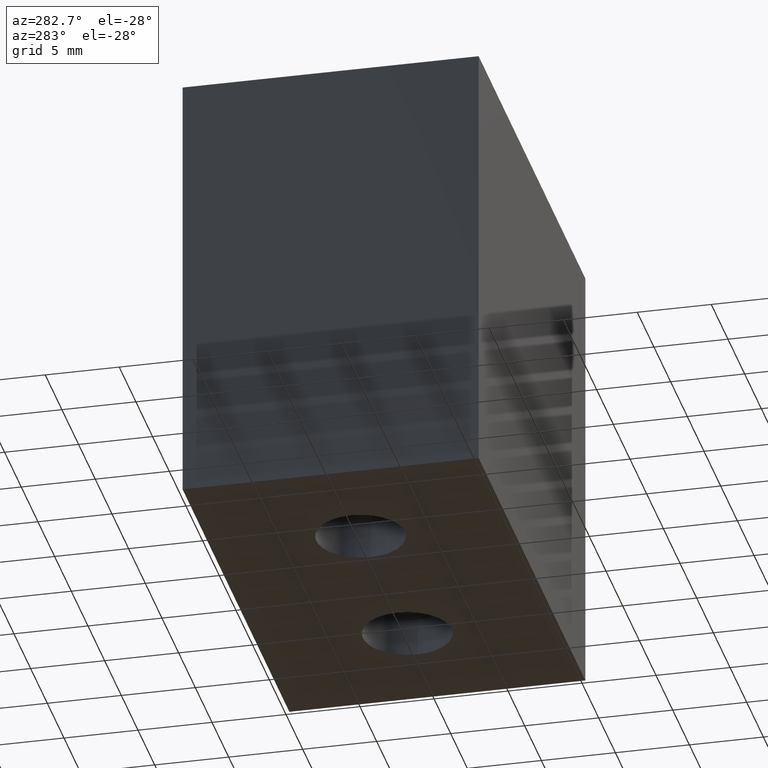
[diagram: clean part render]
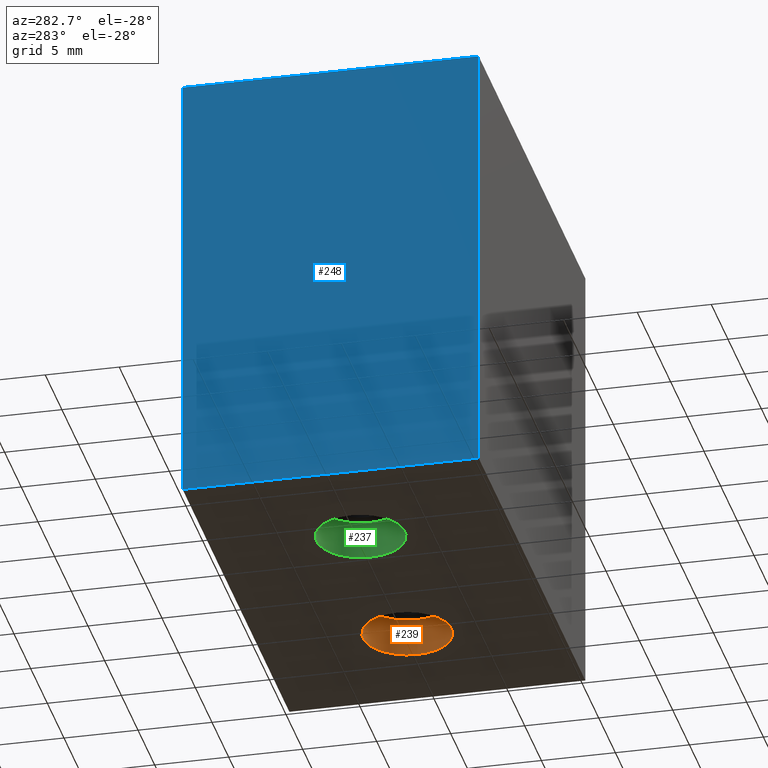
[diagram: same view with three faces highlighted in distinct colors, each labeled with its STEP entity id]
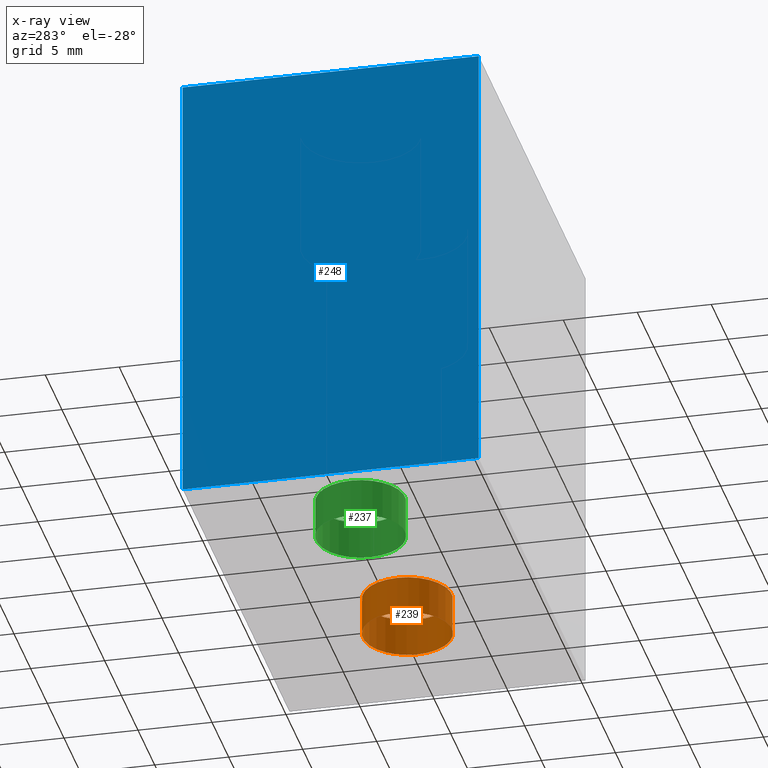
[diagram: x-ray of the same camera — body ghosted, the three highlighted faces saturated]
A machine part, auxiliary view with three faces highlighted in distinct colors.
The next image is the same camera in x-ray (body ghosted, the three faces saturated) — at least one of them is partly hidden behind the body in this view.
Their STEP definitions:

[orange] entity #239 — the highlighted cylindrical surface (bore or boss wall) has radius 3 mm, axis along (0, 0, -1).
#35=FACE_OUTER_BOUND('',#52,.T.);
#52=EDGE_LOOP('',(#177,#178,#179,#180));
#74=LINE('',#394,#92);
#92=VECTOR('',#321,3.);
#112=CIRCLE('',#282,3.);
#113=CIRCLE('',#283,3.);
#124=VERTEX_POINT('',#391);
#125=VERTEX_POINT('',#393);
#145=EDGE_CURVE('',#124,#124,#112,.T.);
#146=EDGE_CURVE('',#124,#125,#74,.T.);
#147=EDGE_CURVE('',#125,#125,#113,.T.);
#177=ORIENTED_EDGE('',*,*,#145,.F.);
#178=ORIENTED_EDGE('',*,*,#146,.T.);
#179=ORIENTED_EDGE('',*,*,#147,.F.);
#180=ORIENTED_EDGE('',*,*,#146,.F.);
#232=CYLINDRICAL_SURFACE('',#281,3.);
#239=ADVANCED_FACE('',(#35),#232,.F.);
#281=AXIS2_PLACEMENT_3D('',#390,#317,#318);
#282=AXIS2_PLACEMENT_3D('',#392,#319,#320);
#283=AXIS2_PLACEMENT_3D('',#395,#322,#323);
#317=DIRECTION('center_axis',(0.,0.,-1.));
#318=DIRECTION('ref_axis',(-1.,0.,0.));
#319=DIRECTION('center_axis',(0.,0.,1.));
#320=DIRECTION('ref_axis',(-1.,0.,0.));
#321=DIRECTION('',(0.,0.,1.));
#322=DIRECTION('center_axis',(0.,0.,-1.));
#323=DIRECTION('ref_axis',(-1.,0.,0.));
#390=CARTESIAN_POINT('Origin',(7.,5.33101755084625E-15,1.3));
#391=CARTESIAN_POINT('',(10.,4.96362351110204E-15,0.));
#392=CARTESIAN_POINT('Origin',(7.,5.33101755084625E-15,0.));
#393=CARTESIAN_POINT('',(10.,4.96362351110204E-15,2.6));
#394=CARTESIAN_POINT('',(10.,4.96362351110204E-15,1.3));
#395=CARTESIAN_POINT('Origin',(7.,5.33101755084625E-15,2.6));

[blue] entity #248 — the highlighted planar face has unit normal (-1, -0, 0).
#28=PLANE('',#299);
#44=FACE_OUTER_BOUND('',#64,.T.);
#64=EDGE_LOOP('',(#207,#208,#209,#210));
#82=LINE('',#429,#100);
#83=LINE('',#432,#101);
#84=LINE('',#434,#102);
#85=LINE('',#435,#103);
#100=VECTOR('',#361,10.);
#101=VECTOR('',#364,10.);
#102=VECTOR('',#365,10.);
#103=VECTOR('',#366,10.);
#133=VERTEX_POINT('',#422);
#136=VERTEX_POINT('',#427);
#137=VERTEX_POINT('',#431);
#138=VERTEX_POINT('',#433);
#162=EDGE_CURVE('',#133,#136,#82,.T.);
#163=EDGE_CURVE('',#137,#133,#83,.T.);
#164=EDGE_CURVE('',#138,#136,#84,.T.);
#165=EDGE_CURVE('',#137,#138,#85,.T.);
#207=ORIENTED_EDGE('',*,*,#163,.T.);
#208=ORIENTED_EDGE('',*,*,#162,.T.);
#209=ORIENTED_EDGE('',*,*,#164,.F.);
#210=ORIENTED_EDGE('',*,*,#165,.F.);
#248=ADVANCED_FACE('',(#44),#28,.T.);
#299=AXIS2_PLACEMENT_3D('',#430,#362,#363);
#361=DIRECTION('',(0.,0.,1.));
#362=DIRECTION('center_axis',(-1.,-2.22044604925031E-16,0.));
#363=DIRECTION('ref_axis',(2.22044604925031E-16,-1.,0.));
#364=DIRECTION('',(2.22044604925031E-16,-1.,0.));
#365=DIRECTION('',(2.22044604925031E-16,-1.,0.));
#366=DIRECTION('',(0.,0.,1.));
#422=CARTESIAN_POINT('',(-16.,-10.,0.));
#427=CARTESIAN_POINT('',(-16.,-10.,30.));
#429=CARTESIAN_POINT('',(-16.,-10.,0.));
#430=CARTESIAN_POINT('Origin',(-16.,10.,0.));
#431=CARTESIAN_POINT('',(-16.,10.,0.));
#432=CARTESIAN_POINT('',(-16.,10.,0.));
#433=CARTESIAN_POINT('',(-16.,10.,30.));
#434=CARTESIAN_POINT('',(-16.,10.,30.));
#435=CARTESIAN_POINT('',(-16.,10.,0.));

[green] entity #237 — the highlighted cylindrical surface (bore or boss wall) has radius 3 mm, axis along (0, 0, -1).
#33=FACE_OUTER_BOUND('',#49,.T.);
#49=EDGE_LOOP('',(#171,#172,#173,#174));
#73=LINE('',#385,#91);
#91=VECTOR('',#310,3.);
#109=CIRCLE('',#277,3.);
#110=CIRCLE('',#278,3.);
#121=VERTEX_POINT('',#382);
#122=VERTEX_POINT('',#384);
#141=EDGE_CURVE('',#121,#121,#109,.T.);
#142=EDGE_CURVE('',#121,#122,#73,.T.);
#143=EDGE_CURVE('',#122,#122,#110,.T.);
#171=ORIENTED_EDGE('',*,*,#141,.F.);
#172=ORIENTED_EDGE('',*,*,#142,.T.);
#173=ORIENTED_EDGE('',*,*,#143,.F.);
#174=ORIENTED_EDGE('',*,*,#142,.F.);
#231=CYLINDRICAL_SURFACE('',#276,3.);
#237=ADVANCED_FACE('',(#33),#231,.F.);
#276=AXIS2_PLACEMENT_3D('',#381,#306,#307);
#277=AXIS2_PLACEMENT_3D('',#383,#308,#309);
#278=AXIS2_PLACEMENT_3D('',#386,#311,#312);
#306=DIRECTION('center_axis',(0.,0.,-1.));
#307=DIRECTION('ref_axis',(-1.,0.,0.));
#308=DIRECTION('center_axis',(0.,0.,1.));
#309=DIRECTION('ref_axis',(-1.,0.,0.));
#310=DIRECTION('',(0.,0.,1.));
#311=DIRECTION('center_axis',(0.,0.,-1.));
#312=DIRECTION('ref_axis',(-1.,0.,0.));
#381=CARTESIAN_POINT('Origin',(-7.,-8.86231387054631E-16,1.3));
#382=CARTESIAN_POINT('',(-4.,-1.25362542679884E-15,0.));
#383=CARTESIAN_POINT('Origin',(-7.,-8.86231387054631E-16,0.));
#384=CARTESIAN_POINT('',(-4.,-1.25362542679884E-15,2.6));
#385=CARTESIAN_POINT('',(-4.,-1.25362542679884E-15,1.3));
#386=CARTESIAN_POINT('Origin',(-7.,-8.86231387054631E-16,2.6));